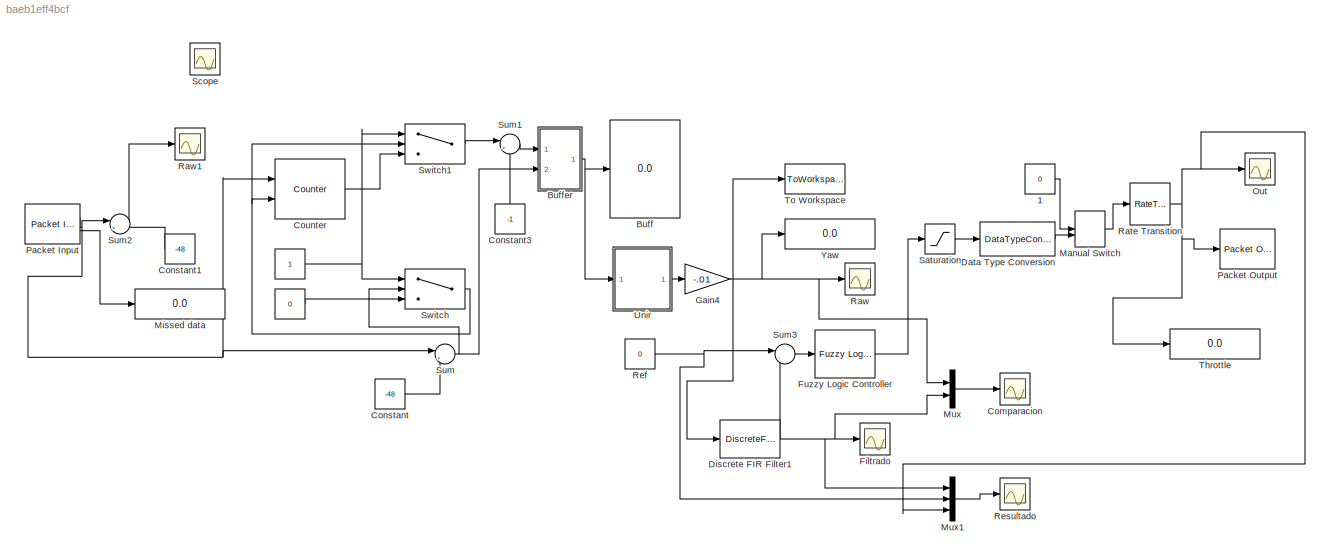
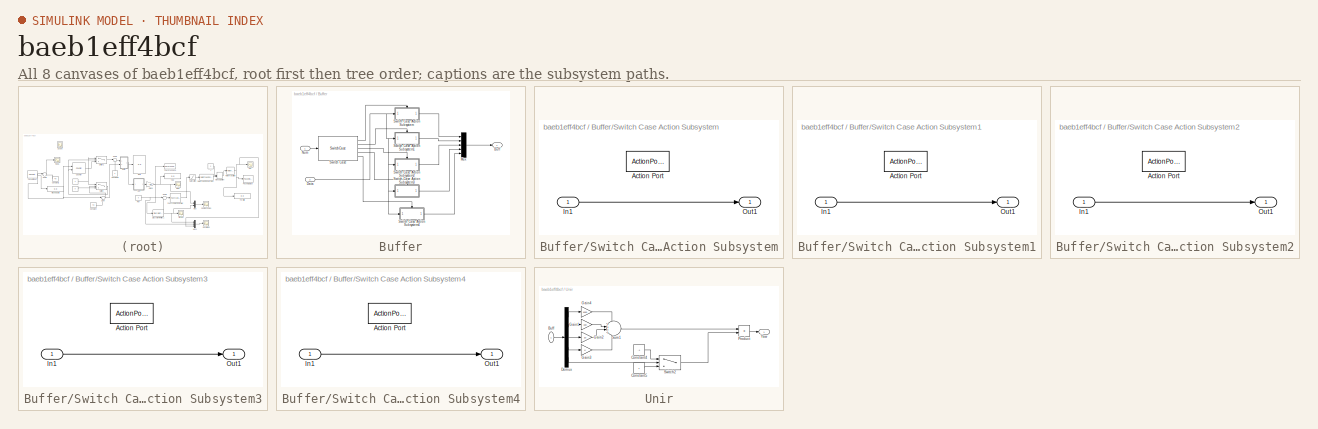
[diagram: thumbnail index - all 8 canvases of the model, root first then tree order]
MODEL slx_baeb1eff4bcf
KIND model
BLOCK [Constant]  
BLOCK [Constant]   
  Value = 0
BLOCK [Constant]   1
  Value = 0
BLOCK [Display] Buff
  Decimation = 1
  Ports = [1]
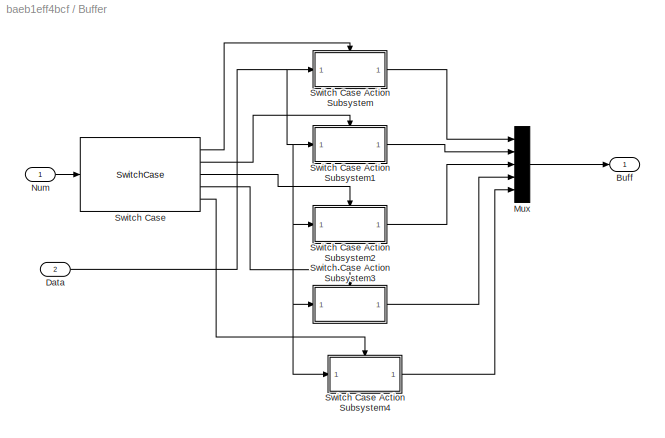
BLOCK [SubSystem] Buffer
  Ports = [2, 1]
  RequestExecContextInheritance = off
BLOCK [Outport] Buffer/Buff
  IconDisplay = Port number
BLOCK [Inport] Buffer/Data
  IconDisplay = Port number
  Port = 2
BLOCK [Mux] Buffer/Mux
  DisplayOption = bar
  Inputs = 5
  Ports = [5, 1]
BLOCK [Inport] Buffer/Num
  IconDisplay = Port number
BLOCK [SwitchCase] Buffer/Switch Case
  CaseConditions = {1,2,3,4,0}
  Ports = [1, 5]
  ShowDefaultCase = off
BLOCK [SubSystem] Buffer/Switch Case Action Subsystem
  Ports = [1, 1, 0, 0, 0, 0, 0, 1]
  RequestExecContextInheritance = off
  TreatAsAtomicUnit = on
BLOCK [ActionPort] Buffer/Switch Case Action Subsystem/Action Port
  ActionType = case
BLOCK [Inport] Buffer/Switch Case Action Subsystem/In1
  IconDisplay = Port number
BLOCK [Outport] Buffer/Switch Case Action Subsystem/Out1
  IconDisplay = Port number
BLOCK [SubSystem] Buffer/Switch Case Action Subsystem1
  Ports = [1, 1, 0, 0, 0, 0, 0, 1]
  RequestExecContextInheritance = off
  TreatAsAtomicUnit = on
BLOCK [ActionPort] Buffer/Switch Case Action Subsystem1/Action Port
  ActionType = case
BLOCK [Inport] Buffer/Switch Case Action Subsystem1/In1
  IconDisplay = Port number
BLOCK [Outport] Buffer/Switch Case Action Subsystem1/Out1
  IconDisplay = Port number
BLOCK [SubSystem] Buffer/Switch Case Action Subsystem2
  Ports = [1, 1, 0, 0, 0, 0, 0, 1]
  RequestExecContextInheritance = off
  TreatAsAtomicUnit = on
BLOCK [ActionPort] Buffer/Switch Case Action Subsystem2/Action Port
  ActionType = case
BLOCK [Inport] Buffer/Switch Case Action Subsystem2/In1
  IconDisplay = Port number
BLOCK [Outport] Buffer/Switch Case Action Subsystem2/Out1
  IconDisplay = Port number
BLOCK [SubSystem] Buffer/Switch Case Action Subsystem3
  Ports = [1, 1, 0, 0, 0, 0, 0, 1]
  RequestExecContextInheritance = off
  TreatAsAtomicUnit = on
BLOCK [ActionPort] Buffer/Switch Case Action Subsystem3/Action Port
  ActionType = case
BLOCK [Inport] Buffer/Switch Case Action Subsystem3/In1
  IconDisplay = Port number
BLOCK [Outport] Buffer/Switch Case Action Subsystem3/Out1
  IconDisplay = Port number
BLOCK [SubSystem] Buffer/Switch Case Action Subsystem4
  Ports = [1, 1, 0, 0, 0, 0, 0, 1]
  RequestExecContextInheritance = off
  TreatAsAtomicUnit = on
BLOCK [ActionPort] Buffer/Switch Case Action Subsystem4/Action Port
  ActionType = case
BLOCK [Inport] Buffer/Switch Case Action Subsystem4/In1
  IconDisplay = Port number
BLOCK [Outport] Buffer/Switch Case Action Subsystem4/Out1
  IconDisplay = Port number
BLOCK [Scope] Comparacion
  Floating = off
  LimitDataPoints = off
  NumInputPorts = 1
  Ports = [1]
  SampleTime = 0
  SaveName = ScopeData6
  SaveToWorkspace = on
  ShowLegends = off
  TimeRange = 3.9
  YMax = 25
  YMin = -25
BLOCK [Constant] Constant
  Value = -48
BLOCK [Constant] Constant1
  Value = -48
BLOCK [Constant] Constant3
  Value = -1
BLOCK [Reference] Counter  REF=dspswit3/Counter
  CntDtype = double
  CountEvent = Non-zero sample
  CounterSize = User defined
  Direction = Up
  HitDtype = Logical
  HitValue = 32
  InitialCount = 0
  MaxCount = 25
  Output = Count
  Ports = [2, 1]
  ResetInput = on
  SamplesPerFrame = 1
  SourceBlock = dspswit3/Counter
  SourceType = Counter
  Ts = 1
BLOCK [DataTypeConversion] Data Type Conversion
  OutDataTypeStr = int8
  RndMeth = Floor
  SaturateOnIntegerOverflow = off
BLOCK [DiscreteFir] Discrete FIR Filter1
  Coefficients = [0.4 0.3 0.2 0.05 0.03 0.02]
  Ports = [1, 1]
BLOCK [Scope] Filtrado
  Floating = off
  LimitDataPoints = off
  NumInputPorts = 1
  Ports = [1]
  SampleTime = 0
  SaveToWorkspace = on
  ShowLegends = off
  TimeRange = 3.9
  YMax = 25
  YMin = -25
  ZoomMode = yonly
BLOCK [Reference] Fuzzy Logic Controller  REF=fuzblock/Fuzzy Logic   (lib defined in mdl_858b3b3e7478)
Controller
  Ports = [1, 1]
  SourceBlock = fuzblock/Fuzzy Logic \nController
  SourceType = FIS
  fis = fuzzy_drone
BLOCK [Gain] Gain4
  Gain = -.01
  OutDataTypeStr = Inherit: Inherit via internal rule
  ParamDataTypeStr = Inherit: Inherit via internal rule
  SaturateOnIntegerOverflow = off
BLOCK [ManualSwitch] Manual Switch
  CurrentSetting = 0
BLOCK [Display] Missed data
  Decimation = 1
  Ports = [1]
BLOCK [Mux] Mux
  DisplayOption = bar
  Inputs = 2
  Ports = [2, 1]
BLOCK [Mux] Mux1
  DisplayOption = bar
  Inputs = 3
  Ports = [3, 1]
BLOCK [Scope] Out
  DataFormat = StructureWithTime
  Floating = off
  NumInputPorts = 1
  Ports = [1]
  SampleTime = 0
  SaveName = ScopeData4
  ShowLegends = off
  YMax = 66
  YMin = 59
BLOCK [Reference] Packet Input  REF=rtwinlib/Packet Input
  AttributesFormatString = Standard Devices\nSerial Port [4h]
  ByteOrder = 1
  DataTypes = 'int8'
  DrvAddress = 4
  DrvName = Standard_Devices/Serial_Port
  DrvOptions = [9600 8 0 0 0 0 0 0]
  MaxMissedTicks = 100000
  PacketID = 1
  PacketSize = 1
  Ports = [0, 2]
  SampleTime = 0.01
  ShowError = off
  ShowMissedTicks = on
  ShowReady = off
  ShowTimestamp = off
  SourceBlock = rtwinlib/Packet Input
  SourceType = RTWin Packet Input
  YieldWhenWaiting = off
BLOCK [Reference] Packet Output  REF=rtwinlib/Packet Output
  AttributesFormatString = Standard Devices\nSerial Port [4h]
  ByteOrder = 1
  DataTypes = 'int8'
  DrvAddress = 4
  DrvName = Standard_Devices/Serial_Port
  DrvOptions = [9600 8 0 0 0 0 0 0]
  FinalValue = []
  InitialValue = []
  MaxMissedTicks = 10000000
  PacketID = 1
  PacketSize = 1
  Ports = [1]
  SampleTime = -1
  ShowError = off
  ShowMissedTicks = off
  ShowReady = off
  SourceBlock = rtwinlib/Packet Output
  SourceType = RTWin Packet Output
  YieldWhenWaiting = off
BLOCK [RateTransition] Rate Transition
BLOCK [Scope] Raw
  DataFormat = StructureWithTime
  Floating = off
  NumInputPorts = 1
  Ports = [1]
  SampleTime = 0
  SaveName = ScopeData1
  ShowLegends = off
  YMax = 26.5
  YMin = -25
BLOCK [Scope] Raw1
  DataFormat = StructureWithTime
  Floating = off
  NumInputPorts = 1
  Ports = [1]
  SampleTime = 0
  SaveName = ScopeData2
  ShowLegends = off
  YMax = 20
  YMin = 0
BLOCK [Constant] Ref
  Value = 0
BLOCK [Scope] Resultado
  Floating = off
  LimitDataPoints = off
  NumInputPorts = 1
  Ports = [1]
  SampleTime = 0
  SaveName = ScopeData7
  SaveToWorkspace = on
  ShowLegends = off
  TimeRange = 3.9
  YMax = 25
  YMin = -25
BLOCK [Saturate] Saturation
  InputPortMap = u0
  LowerLimit = 0
  Ports = [1, 1]
  UpperLimit = 70
BLOCK [Scope] Scope
  DataFormat = StructureWithTime
  Floating = off
  IOType = viewer
  NumInputPorts = 1
  Ports = []
  SampleTime = 0
  SaveName = ScopeData5
  ShowLegends = off
  YMax = 0
  YMin = -2
BLOCK [Sum] Sum
  IconShape = round
  InputSameDT = off
  Inputs = |++
  OutDataTypeStr = Inherit: Inherit via internal rule
  Ports = [2, 1]
  SaturateOnIntegerOverflow = off
BLOCK [Sum] Sum1
  IconShape = round
  InputSameDT = off
  Inputs = |++
  OutDataTypeStr = Inherit: Inherit via internal rule
  Ports = [2, 1]
  SaturateOnIntegerOverflow = off
BLOCK [Sum] Sum2
  IconShape = round
  InputSameDT = off
  Inputs = |++
  OutDataTypeStr = Inherit: Inherit via internal rule
  Ports = [2, 1]
  SaturateOnIntegerOverflow = off
BLOCK [Sum] Sum3
  IconShape = round
  InputSameDT = off
  Inputs = |-+
  OutDataTypeStr = Inherit: Inherit via internal rule
  Ports = [2, 1]
  SaturateOnIntegerOverflow = off
BLOCK [Switch] Switch
  InputSameDT = off
  SaturateOnIntegerOverflow = off
  Threshold = 19
BLOCK [Switch] Switch1
  Criteria = u2 > Threshold
  InputSameDT = off
  SaturateOnIntegerOverflow = off
BLOCK [Display] Throttle
  Decimation = 1
  Ports = [1]
BLOCK [ToWorkspace] To Workspace
  FixptAsFi = on
  MaxDataPoints = inf
  Ports = [1]
  SampleTime = -1
  Save2DSignal = 3-D array (concatenate along third dimension)
  VariableName = simout
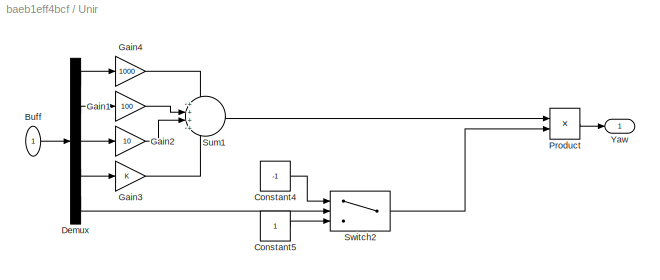
BLOCK [SubSystem] Unir
  Ports = [1, 1]
  RequestExecContextInheritance = off
BLOCK [Inport] Unir/Buff
  IconDisplay = Port number
BLOCK [Constant] Unir/Constant4
  Value = -1
BLOCK [Constant] Unir/Constant5
BLOCK [Demux] Unir/Demux
  DisplayOption = bar
  Outputs = 5
  Ports = [1, 5]
BLOCK [Gain] Unir/Gain1
  Gain = 100
  OutDataTypeStr = Inherit: Inherit via internal rule
  ParamDataTypeStr = Inherit: Inherit via internal rule
  SaturateOnIntegerOverflow = off
BLOCK [Gain] Unir/Gain2
  Gain = 10
  OutDataTypeStr = Inherit: Inherit via internal rule
  ParamDataTypeStr = Inherit: Inherit via internal rule
  SaturateOnIntegerOverflow = off
BLOCK [Gain] Unir/Gain3
  OutDataTypeStr = Inherit: Inherit via internal rule
  ParamDataTypeStr = Inherit: Inherit via internal rule
  SaturateOnIntegerOverflow = off
BLOCK [Gain] Unir/Gain4
  Gain = 1000
  OutDataTypeStr = Inherit: Inherit via internal rule
  ParamDataTypeStr = Inherit: Inherit via internal rule
  SaturateOnIntegerOverflow = off
BLOCK [Product] Unir/Product
  InputSameDT = off
  OutDataTypeStr = Inherit: Inherit via internal rule
  Ports = [2, 1]
  RndMeth = Floor
  SaturateOnIntegerOverflow = off
BLOCK [Sum] Unir/Sum1
  IconShape = round
  InputSameDT = off
  Inputs = ++++
  OutDataTypeStr = Inherit: Inherit via internal rule
  Ports = [4, 1]
  SaturateOnIntegerOverflow = off
BLOCK [Switch] Unir/Switch2
  InputSameDT = off
  SaturateOnIntegerOverflow = off
  Threshold = 21
BLOCK [Outport] Unir/Yaw
  IconDisplay = Port number
BLOCK [Display] Yaw
  Decimation = 1
  Ports = [1]
LINE   1:1 -> Manual Switch:1
LINE   :1 -> Switch:3
NET  :1 -> Switch1:1, Switch:1
NET Buffer/Data:1 -> Buffer/Switch Case Action Subsystem1:1, Buffer/Switch Case Action Subsystem2:1, Buffer/Switch Case Action Subsystem3:1, Buffer/Switch Case Action Subsystem4:1, Buffer/Switch Case Action Subsystem:1
LINE Buffer/Mux:1 -> Buffer/Buff:1
LINE Buffer/Num:1 -> Buffer/Switch Case:1
LINE Buffer/Switch Case Action Subsystem/In1:1 -> Buffer/Switch Case Action Subsystem/Out1:1
LINE Buffer/Switch Case Action Subsystem1/In1:1 -> Buffer/Switch Case Action Subsystem1/Out1:1
LINE Buffer/Switch Case Action Subsystem1:1 -> Buffer/Mux:2
LINE Buffer/Switch Case Action Subsystem2/In1:1 -> Buffer/Switch Case Action Subsystem2/Out1:1
LINE Buffer/Switch Case Action Subsystem2:1 -> Buffer/Mux:3
LINE Buffer/Switch Case Action Subsystem3/In1:1 -> Buffer/Switch Case Action Subsystem3/Out1:1
LINE Buffer/Switch Case Action Subsystem3:1 -> Buffer/Mux:4
LINE Buffer/Switch Case Action Subsystem4/In1:1 -> Buffer/Switch Case Action Subsystem4/Out1:1
LINE Buffer/Switch Case Action Subsystem4:1 -> Buffer/Mux:5
LINE Buffer/Switch Case Action Subsystem:1 -> Buffer/Mux:1
LINE Buffer/Switch Case:1 -> Buffer/Switch Case Action Subsystem:ifaction
LINE Buffer/Switch Case:2 -> Buffer/Switch Case Action Subsystem1:ifaction
LINE Buffer/Switch Case:3 -> Buffer/Switch Case Action Subsystem2:ifaction
LINE Buffer/Switch Case:4 -> Buffer/Switch Case Action Subsystem3:ifaction
LINE Buffer/Switch Case:5 -> Buffer/Switch Case Action Subsystem4:ifaction
NET Buffer:1 -> Buff:1, Unir:1
LINE Constant1:1 -> Sum2:2
LINE Constant3:1 -> Sum1:2
LINE Constant:1 -> Sum:2
LINE Counter:1 -> Switch1:3
LINE Data Type Conversion:1 -> Manual Switch:2
NET Discrete FIR Filter1:1 -> Filtrado:1, Mux1:1, Mux:2, Sum3:2
LINE Fuzzy Logic Controller:1 -> Saturation:1
NET Gain4:1 -> Discrete FIR Filter1:1, Mux:1, Raw:1, To Workspace:1, Yaw:1
LINE Manual Switch:1 -> Rate Transition:1
LINE Mux1:1 -> Resultado:1
LINE Mux:1 -> Comparacion:1
NET Packet Input:1 -> Counter:1, Sum2:1, Sum:1
LINE Packet Input:2 -> Missed data:1
NET Rate Transition:1 -> Mux1:3, Out:1, Packet Output:1, Throttle:1
NET Ref:1 -> Mux1:2, Sum3:1
LINE Saturation:1 -> Data Type Conversion:1
LINE Sum1:1 -> Buffer:1
LINE Sum2:1 -> Raw1:1
LINE Sum3:1 -> Fuzzy Logic Controller:1
NET Sum:1 -> Buffer:2, Switch:2
LINE Switch1:1 -> Sum1:1
NET Switch:1 -> Counter:2, Switch1:2
LINE Unir/Buff:1 -> Unir/Demux:1
LINE Unir/Constant4:1 -> Unir/Switch2:1
LINE Unir/Constant5:1 -> Unir/Switch2:3
LINE Unir/Demux:1 -> Unir/Gain4:1
LINE Unir/Demux:2 -> Unir/Gain1:1
LINE Unir/Demux:3 -> Unir/Gain2:1
LINE Unir/Demux:4 -> Unir/Gain3:1
LINE Unir/Demux:5 -> Unir/Switch2:2
LINE Unir/Gain1:1 -> Unir/Sum1:2
LINE Unir/Gain2:1 -> Unir/Sum1:3
LINE Unir/Gain3:1 -> Unir/Sum1:4
LINE Unir/Gain4:1 -> Unir/Sum1:1
LINE Unir/Product:1 -> Unir/Yaw:1
LINE Unir/Sum1:1 -> Unir/Product:1
LINE Unir/Switch2:1 -> Unir/Product:2
LINE Unir:1 -> Gain4:1
note: NET lines group one-source signal fan-out (src -> all destinations, sorted); 1:1 wires keep LINE
